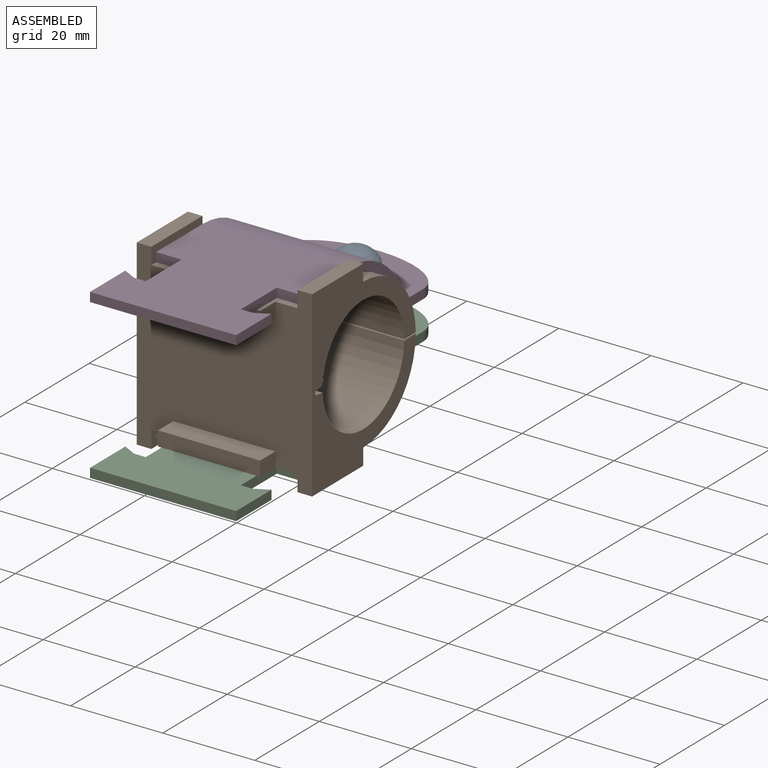
[diagram: assembled view]
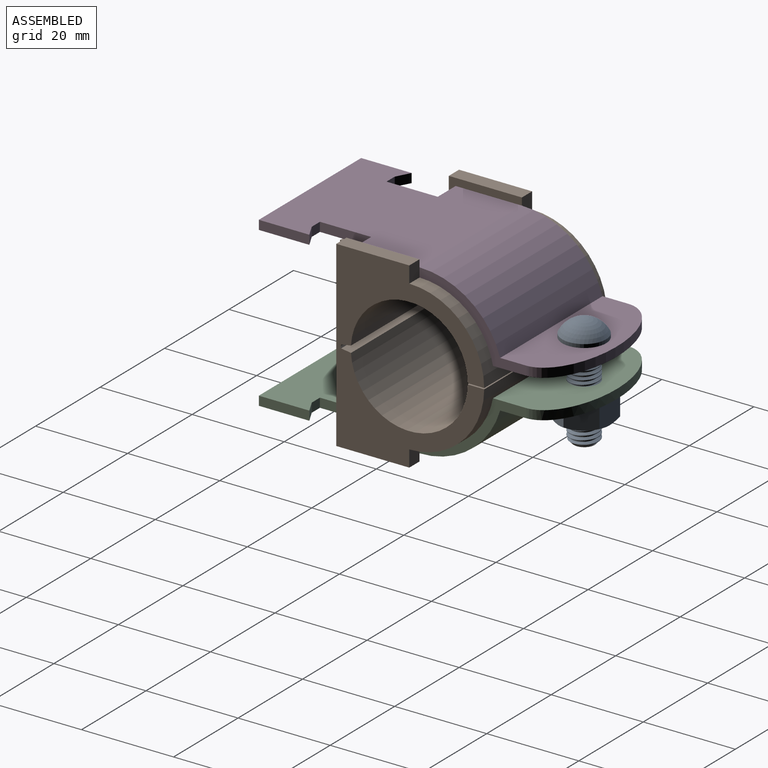
[diagram: assembled view, second angle]
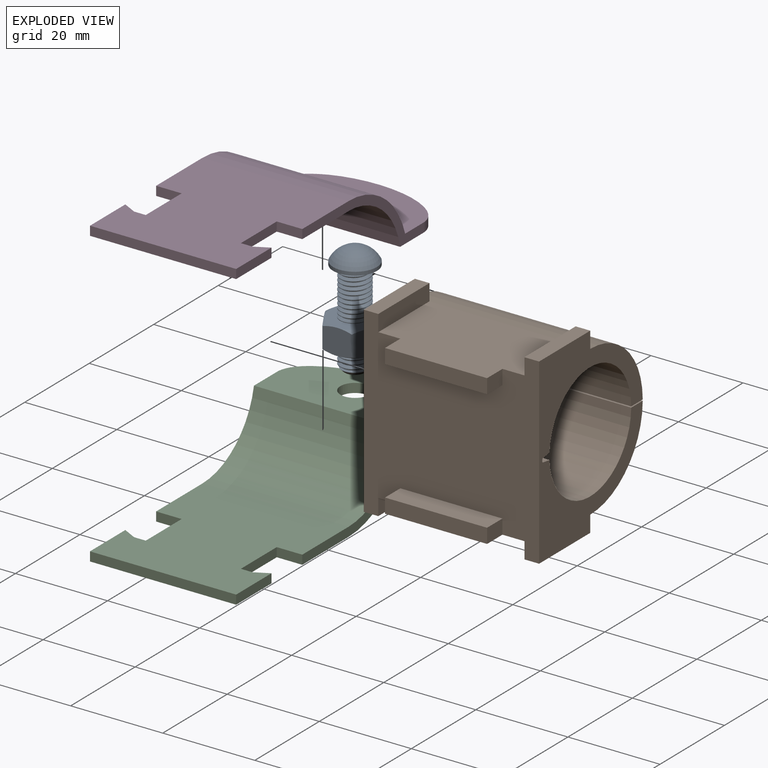
[diagram: exploded view]
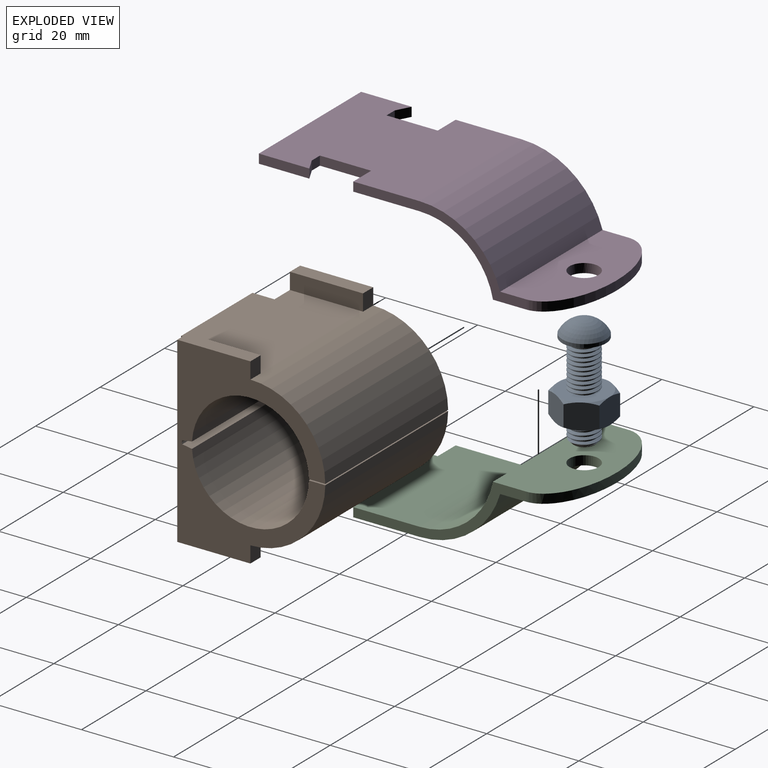
[diagram: exploded view, second angle]
ASSEMBLY  parts=4 mates=5
PART A: 34 faces, bbox 13.4x13.4x25 mm
  f0: cylinder r=3.17mm len=10.32mm, axis (0,0,1), area 25.9mm2, adj f1,f3,f4,f8
  f1: bspline ~11.11x6.35mm, area 140.6mm2, adj f0,f2,f4,f8
  f2: cylinder r=2.59mm len=10.32mm, axis (0,0,1), area 21.1mm2, adj f1,f3,f4,f8
  f3: bspline ~11.11x6.35mm, area 140.6mm2, adj f0,f2,f4,f8
  f4: plane 9.89x9.89mm, normal (0,0,-1), area 45.1mm2, adj f0,f1,f2,f3,f5
  f5: cylinder r=4.76mm len=9.53mm, axis (0,0,-1), area 22.8mm2, adj f4,f6
  f6: sphere r=5.32mm, area 98.5mm2, adj f5
  f7: plane 11.47x11.47mm, normal (0,0,-1), area 70.8mm2, adj f15,f16,f17,f18,f19,f20,f30,f31
  f8: plane 11.47x11.47mm, normal (0,0,1), area 70.8mm2, adj f0,f1,f2,f3,f21,f22,f23,f24
  f9: plane 6.09x6.08mm, normal (-0.87,0.5,0), area 33.4mm2, adj f10,f14,f15,f20,f21,f26
  f10: plane 6.95x6.08mm, normal (0,1,0), area 33.4mm2, adj f9,f11,f19,f20,f25,f26
  f11: plane 6.09x6.08mm, normal (0.87,0.5,0), area 33.4mm2, adj f10,f12,f18,f19,f24,f25
  f12: plane 6.09x6.08mm, normal (0.87,-0.5,0), area 33.4mm2, adj f11,f13,f17,f18,f23,f24
  f13: plane 6.95x6.08mm, normal (0,-1,0), area 33.4mm2, adj f12,f14,f16,f17,f22,f23
  f14: plane 6.09x6.08mm, normal (-0.87,-0.5,0), area 33.4mm2, adj f9,f13,f15,f16,f21,f22
  f15: cone r=5.56mm half-angle=60deg, axis (0,0,1), area 3mm2, adj f7,f9,f14
  f16: cone r=5.56mm half-angle=60deg, axis (0,0,1), area 3mm2, adj f7,f13,f14
  f17: cone r=5.56mm half-angle=60deg, axis (0,0,1), area 3mm2, adj f7,f12,f13
  f18: cone r=5.56mm half-angle=60deg, axis (0,0,1), area 3mm2, adj f7,f11,f12
  f19: cone r=5.56mm half-angle=60deg, axis (0,0,1), area 3mm2, adj f7,f10,f11
  f20: cone r=5.56mm half-angle=60deg, axis (0,0,1), area 3mm2, adj f7,f9,f10
  f21: cone r=5.56mm half-angle=60deg, axis (0,0,-1), area 3mm2, adj f8,f9,f14
  f22: cone r=5.56mm half-angle=60deg, axis (0,0,-1), area 3mm2, adj f8,f13,f14
  f23: cone r=5.56mm half-angle=60deg, axis (0,0,-1), area 3mm2, adj f8,f12,f13
  f24: cone r=5.56mm half-angle=60deg, axis (0,0,-1), area 3mm2, adj f8,f11,f12
  f25: cone r=5.56mm half-angle=60deg, axis (0,0,-1), area 3mm2, adj f8,f10,f11
  f26: cone r=5.56mm half-angle=60deg, axis (0,0,-1), area 3mm2, adj f8,f9,f10
  f27: plane 4.54x4.54mm, normal (0,0,-1), area 16.2mm2, adj f28
  f28: cone r=3.17mm half-angle=45deg, axis (0,0,1), area 12.5mm2, adj f27,f29,f30,f31,f32
  f29: cone r=3.17mm half-angle=45deg, axis (0,0,1), area 1.7mm2, adj f28,f30,f32,f33
  f30: bspline ~6.35x6.35mm, area 56.5mm2, adj f7,f28,f29,f31,f33
  f31: cylinder r=2.59mm len=5.17mm, axis (0,0,1), area 9.1mm2, adj f7,f28,f30,f32
  f32: bspline ~6.35x6.35mm, area 56.2mm2, adj f7,f28,f29,f31,f33
  f33: cylinder r=3.17mm len=6.35mm, axis (0,0,1), area 9.6mm2, adj f7,f29,f30,f32
PART B: 35 faces, bbox 38.1x36.9x39.7 mm
  f0: plane 15.88x3.18mm, normal (0,0,1), area 50.4mm2, adj f1,f11,f25,f30
  f1: plane 3.57x3.18mm, normal (0,1,0), area 11.3mm2, adj f0,f23,f25,f30
  f2: plane 15.88x3.18mm, normal (0,0,-1), area 50.4mm2, adj f3,f11,f25,f28
  f3: plane 3.57x3.18mm, normal (0,1,0), area 11.3mm2, adj f2,f14,f25,f28
  f4: plane 15.88x3.18mm, normal (0,0,1), area 50.4mm2, adj f11,f24,f26,f29
  f5: plane 31.75x20.64mm, normal (0,0,1), area 609.6mm2, adj f6,f11,f23,f29,f30,f31,f33
  f6: plane 22.17x3.18mm, normal (0,-1,0), area 70.4mm2, adj f5,f7,f31,f33
  f7: plane 22.17x4.76mm, normal (0,0,-1), area 105.6mm2, adj f6,f11,f31,f33
  f8: plane 22.17x4.76mm, normal (0,0,1), area 105.6mm2, adj f9,f11,f32,f34
  f9: plane 22.17x3.18mm, normal (0,-1,0), area 70.4mm2, adj f8,f10,f32,f34
  f10: plane 31.75x20.64mm, normal (0,0,-1), area 609.6mm2, adj f9,f11,f14,f27,f28,f32,f34
  f11: plane 39.69x38.1mm, normal (0,-1,0), area 1144.5mm2, adj f0,f2,f4,f5,f7,f8,f10,f12
  f12: plane 15.88x3.18mm, normal (0,0,-1), area 50.4mm2, adj f11,f13,f26,f27
  f13: plane 3.57x3.18mm, normal (0,1,0), area 11.3mm2, adj f12,f14,f26,f27
  f14: cylinder r=16.27mm len=38.1mm, axis (-1,0,0), area 969mm2, adj f3,f10,f13,f15,f25,f26
  f15: plane 38.1x3.57mm, normal (0,0,1), area 136.1mm2, adj f14,f16,f25,f26
  f16: cylinder r=12.7mm len=38.1mm, axis (-1,0,0), area 1487.7mm2, adj f15,f17,f25,f26
  f17: plane 38.1x2.13mm, normal (0,0.15,0.99), area 82.1mm2, adj f16,f18,f25,f26
  f18: plane 38.1x0.39mm, normal (0,0.97,0.25), area 15.5mm2, adj f17,f19,f25,f26
  f19: plane 38.1x0.39mm, normal (0,0.97,-0.25), area 15.5mm2, adj f18,f20,f25,f26
  f20: plane 38.1x2.13mm, normal (0,0.15,-0.99), area 82.1mm2, adj f19,f21,f25,f26
  f21: cylinder r=12.7mm len=38.1mm, axis (-1,0,0), area 1487.7mm2, adj f20,f22,f25,f26
  f22: plane 38.1x3.57mm, normal (0,0,-1), area 136.1mm2, adj f21,f23,f25,f26
  f23: cylinder r=16.27mm len=38.1mm, axis (-1,0,0), area 969mm2, adj f1,f5,f22,f24,f25,f26
  f24: plane 3.57x3.18mm, normal (0,1,0), area 11.3mm2, adj f4,f23,f26,f29
  f25: plane 39.69x32.15mm, normal (1,0,0), area 535.9mm2, adj f0,f1,f2,f3,f11,f14,f15,f16
  f26: plane 39.69x32.15mm, normal (-1,0,0), area 535.9mm2, adj f4,f11,f12,f13,f14,f15,f16,f17
  f27: plane 15.88x3.57mm, normal (1,0,0), area 56.7mm2, adj f10,f11,f12,f13
  f28: plane 15.88x3.57mm, normal (-1,0,0), area 56.7mm2, adj f2,f3,f10,f11
  f29: plane 15.88x3.57mm, normal (1,0,0), area 56.7mm2, adj f4,f5,f11,f24
  f30: plane 15.88x3.57mm, normal (-1,0,0), area 56.7mm2, adj f0,f1,f5,f11
  f31: plane 4.76x3.18mm, normal (-1,0,0), area 15.1mm2, adj f5,f6,f7,f11
  f32: plane 4.76x3.18mm, normal (-1,0,0), area 15.1mm2, adj f8,f9,f10,f11
  f33: plane 4.76x3.18mm, normal (1,0,0), area 15.1mm2, adj f5,f6,f7,f11
  f34: plane 4.76x3.18mm, normal (1,0,0), area 15.1mm2, adj f8,f9,f10,f11
PART C: 21 faces, bbox 31.8x66.7x15.1 mm
  f0: plane 37.52x15.08mm, normal (-1,0,0), area 86.7mm2, adj f1,f13,f14,f15,f16,f17,f18,f20
  f1: plane 34.91x31.75mm, normal (0,0,-1), area 989.7mm2, adj f0,f2,f3,f4,f5,f6,f7,f8
  f2: plane 37.52x15.08mm, normal (1,0,0), area 86.7mm2, adj f1,f3,f14,f15,f16,f17,f18,f20
  f3: plane 5.55x1.98mm, normal (0,-1,0), area 11mm2, adj f1,f2,f4,f14
  f4: plane 11.13x1.98mm, normal (1,0,0), area 22.1mm2, adj f1,f3,f5,f14
  f5: plane 2.54x1.98mm, normal (0,1,0), area 5mm2, adj f1,f4,f6,f14
  f6: plane 3.01x1.98mm, normal (-0.47,0.89,0), area 6.7mm2, adj f1,f5,f7,f14
  f7: plane 10.97x1.98mm, normal (1,0,0), area 21.8mm2, adj f1,f6,f8,f14
  f8: plane 31.75x1.98mm, normal (0,-1,0), area 63mm2, adj f1,f7,f9,f14
  f9: plane 10.97x1.98mm, normal (-1,0,0), area 21.8mm2, adj f1,f8,f10,f14
  f10: plane 3.01x1.98mm, normal (0.47,0.89,0), area 6.7mm2, adj f1,f9,f11,f14
  f11: plane 2.54x1.98mm, normal (0,1,0), area 5mm2, adj f1,f10,f12,f14
  f12: plane 11.13x1.98mm, normal (-1,0,0), area 22.1mm2, adj f1,f11,f13,f14
  f13: plane 5.55x1.98mm, normal (0,-1,0), area 11mm2, adj f0,f1,f12,f14
  f14: plane 34.91x31.75mm, normal (0,0,1), area 989.7mm2, adj f0,f2,f3,f4,f5,f6,f7,f8
  f15: cylinder r=16.27mm len=31.75mm, axis (1,0,0), area 710.1mm2, adj f0,f2,f14,f16
  f16: plane 31.75x15.8mm, normal (0,0,1), area 411.2mm2, adj f0,f2,f15,f19,f20
  f17: cylinder r=18.26mm len=31.75mm, axis (1,0,0), area 744.4mm2, adj f0,f1,f2,f18
  f18: plane 31.75x14.25mm, normal (0,0,-1), area 361.9mm2, adj f0,f2,f17,f19,f20
  f19: cylinder r=3.17mm len=6.35mm, axis (0,0,1), area 39.6mm2, adj f16,f18
  f20: extruded ~31.75x8.64mm, area 78.1mm2, adj f0,f2,f16,f18
PART D: 21 faces, bbox 31.8x66.7x15.1 mm
  f0: plane 37.52x15.08mm, normal (-1,0,0), area 86.7mm2, adj f1,f13,f14,f15,f16,f17,f18,f20
  f1: plane 5.55x1.98mm, normal (0,-1,0), area 11mm2, adj f0,f2,f13,f16
  f2: plane 11.13x1.98mm, normal (-1,0,0), area 22.1mm2, adj f1,f3,f13,f16
  f3: plane 2.54x1.98mm, normal (0,1,0), area 5mm2, adj f2,f4,f13,f16
  f4: plane 3.01x1.98mm, normal (0.47,0.89,0), area 6.7mm2, adj f3,f5,f13,f16
  f5: plane 10.97x1.98mm, normal (-1,0,0), area 21.8mm2, adj f4,f6,f13,f16
  f6: plane 31.75x1.98mm, normal (0,-1,0), area 63mm2, adj f5,f7,f13,f16
  f7: plane 10.97x1.98mm, normal (1,0,0), area 21.8mm2, adj f6,f8,f13,f16
  f8: plane 3.01x1.98mm, normal (-0.47,0.89,0), area 6.7mm2, adj f7,f9,f13,f16
  f9: plane 2.54x1.98mm, normal (0,1,0), area 5mm2, adj f8,f10,f13,f16
  f10: plane 11.13x1.98mm, normal (1,0,0), area 22.1mm2, adj f9,f11,f13,f16
  f11: plane 5.55x1.98mm, normal (0,-1,0), area 11mm2, adj f10,f12,f13,f16
  f12: plane 37.52x15.08mm, normal (1,0,0), area 86.7mm2, adj f11,f13,f14,f15,f16,f17,f18,f20
  f13: plane 34.91x31.75mm, normal (0,0,1), area 989.7mm2, adj f0,f1,f2,f3,f4,f5,f6,f7
  f14: plane 31.75x14.25mm, normal (0,0,1), area 361.9mm2, adj f0,f12,f15,f19,f20
  f15: cylinder r=18.26mm len=31.75mm, axis (1,0,0), area 744.4mm2, adj f0,f12,f13,f14
  f16: plane 34.91x31.75mm, normal (0,0,-1), area 989.7mm2, adj f0,f1,f2,f3,f4,f5,f6,f7
  f17: cylinder r=16.27mm len=31.75mm, axis (1,0,0), area 710.1mm2, adj f0,f12,f16,f18
  f18: plane 31.75x15.8mm, normal (0,0,-1), area 411.2mm2, adj f0,f12,f17,f19,f20
  f19: cylinder r=3.17mm len=6.35mm, axis (0,0,1), area 39.6mm2, adj f14,f18
  f20: extruded ~31.75x8.64mm, area 78.1mm2, adj f0,f12,f14,f18
PLACE A t=(45.46,-95.66,146.17)mm
PLACE B t=(45.46,-95.66,146.17)mm
PLACE C t=(45.46,-95.66,146.17)mm
PLACE D t=(45.46,-95.66,146.17)mm
MATE fastened A.f0 <-> D.f19  axis (0,0,-1) through (45.46,-71.02,151.33)mm
MATE cylindrical B.f14 <-> D.f15  axis (-1,0,0) through (26.41,-95.66,146.17)mm
MATE cylindrical B.f14 <-> C.f15  axis (1,0,0) through (64.51,-95.66,146.17)mm
MATE cylindrical C.f19 <-> A.f0  axis (0,0,-1) through (45.46,-71.02,141.01)mm
MATE cylindrical A.f0 <-> D.f19  axis (0,0,-1) through (45.46,-71.02,151.33)mm
